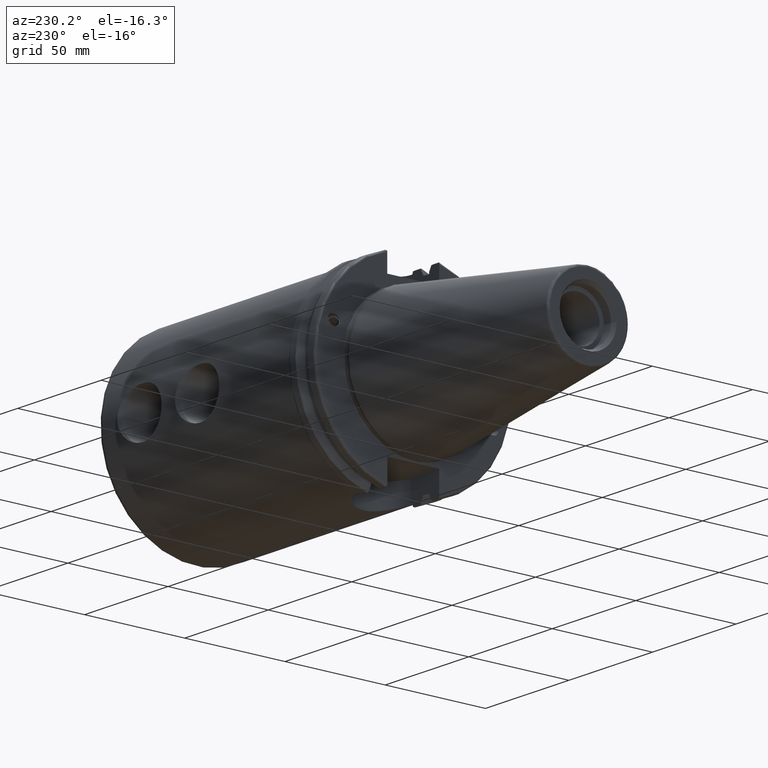
[diagram: clean part render]
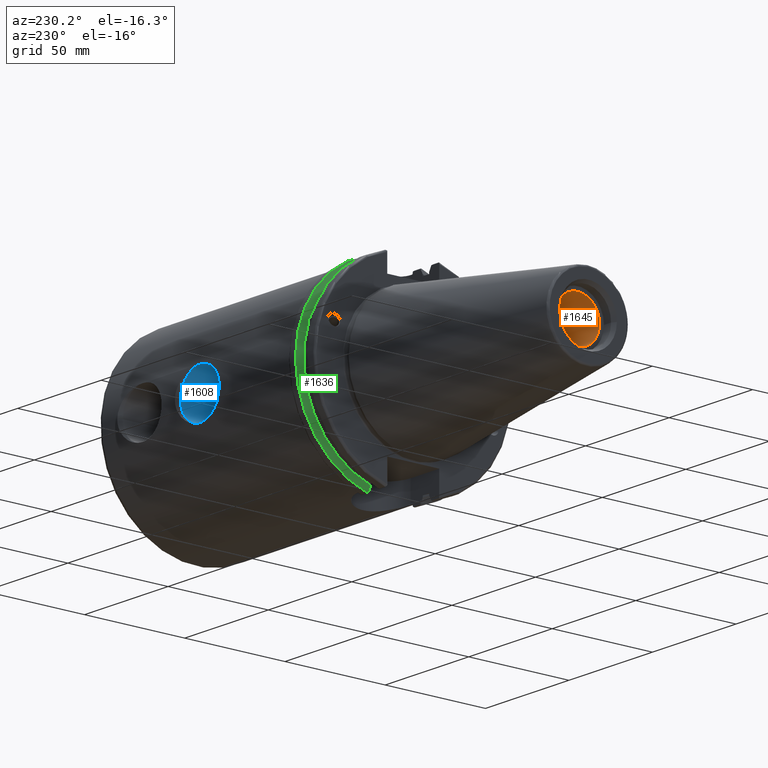
[diagram: same view with three faces highlighted in distinct colors, each labeled with its STEP entity id]
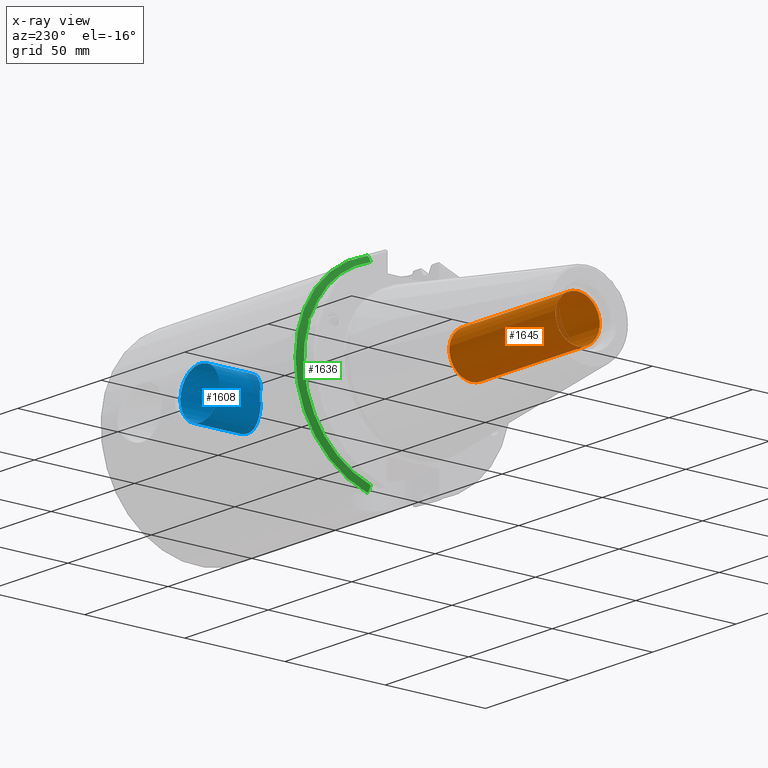
[diagram: x-ray of the same camera — body ghosted, the three highlighted faces saturated]
A machine part, auxiliary view with three faces highlighted in distinct colors.
The next image is the same camera in x-ray (body ghosted, the three faces saturated) — at least one of them is partly hidden behind the body in this view.
Their STEP definitions:

[orange] entity #1645 — the highlighted cylindrical surface (bore or boss wall) has radius 10.9855 mm, axis along (-1, 0, 0).
#157=LINE('',#3279,#248);
#248=VECTOR('',#2168,10.9855);
#308=CYLINDRICAL_SURFACE('',#1820,10.9855);
#366=FACE_OUTER_BOUND('',#472,.T.);
#472=EDGE_LOOP('',(#1346,#1347,#1348,#1349));
#579=CIRCLE('',#1819,10.9855);
#580=CIRCLE('',#1821,10.9855);
#778=VERTEX_POINT('',#3273);
#779=VERTEX_POINT('',#3277);
#987=EDGE_CURVE('',#778,#778,#579,.T.);
#989=EDGE_CURVE('',#779,#779,#580,.T.);
#990=EDGE_CURVE('',#779,#778,#157,.T.);
#1346=ORIENTED_EDGE('',*,*,#989,.F.);
#1347=ORIENTED_EDGE('',*,*,#990,.T.);
#1348=ORIENTED_EDGE('',*,*,#987,.F.);
#1349=ORIENTED_EDGE('',*,*,#990,.F.);
#1645=ADVANCED_FACE('',(#366),#308,.F.);
#1819=AXIS2_PLACEMENT_3D('',#3274,#2161,#2162);
#1820=AXIS2_PLACEMENT_3D('',#3276,#2164,#2165);
#1821=AXIS2_PLACEMENT_3D('',#3278,#2166,#2167);
#2161=DIRECTION('center_axis',(-1.,0.,0.));
#2162=DIRECTION('ref_axis',(0.,0.,1.));
#2164=DIRECTION('center_axis',(-1.,0.,0.));
#2165=DIRECTION('ref_axis',(0.,0.,1.));
#2166=DIRECTION('center_axis',(1.,0.,0.));
#2167=DIRECTION('ref_axis',(0.,0.,1.));
#2168=DIRECTION('',(1.,0.,0.));
#3273=CARTESIAN_POINT('',(-31.6,-1.34533574120333E-15,-10.9855));
#3274=CARTESIAN_POINT('Origin',(-31.6,0.,0.));
#3276=CARTESIAN_POINT('Origin',(-66.6,0.,0.));
#3277=CARTESIAN_POINT('',(-95.25,1.34533574120333E-15,-10.9855));
#3278=CARTESIAN_POINT('Origin',(-95.25,0.,0.));
#3279=CARTESIAN_POINT('',(-66.6,-1.34533574120333E-15,-10.9855));

[blue] entity #1608 — the highlighted cylindrical surface (bore or boss wall) has radius 11.7221 mm, axis along (0, 1, 0).
#118=LINE('',#2668,#209);
#119=LINE('',#2693,#210);
#120=LINE('',#2702,#211);
#209=VECTOR('',#1971,11.7221);
#210=VECTOR('',#1972,10.);
#211=VECTOR('',#1973,10.);
#292=CYLINDRICAL_SURFACE('',#1742,11.7221);
#329=FACE_OUTER_BOUND('',#425,.T.);
#425=EDGE_LOOP('',(#1149,#1150,#1151,#1152,#1153,#1154,#1155,#1156));
#540=CIRCLE('',#1741,11.7221);
#624=B_SPLINE_CURVE_WITH_KNOTS('',3,(#2670,#2671,#2672,#2673,#2674,#2675,
#2676,#2677,#2678,#2679,#2680,#2681,#2682,#2683,#2684,#2685,#2686,#2687,
#2688,#2689,#2690,#2691),.UNSPECIFIED.,.F.,.F.,(4,2,2,2,2,2,2,2,2,2,4),
(2.01979536191022,2.24497394307556,2.69362746322139,3.14313415454042,3.36788750019993,
3.59264084585945,3.81739419151896,4.04214753717848,4.49165422849751,4.94030774864334,
5.38896126878917),.UNSPECIFIED.);
#625=B_SPLINE_CURVE_WITH_KNOTS('',3,(#2695,#2696,#2697,#2698,#2699,#2700),
 .UNSPECIFIED.,.F.,.F.,(4,2,4),(1.5713578067843,1.79478439948926,2.01821099219422),
 .UNSPECIFIED.);
#626=B_SPLINE_CURVE_WITH_KNOTS('',3,(#2703,#2704,#2705,#2706,#2707,#2708,
#2709,#2710,#2711,#2712,#2713,#2714,#2715,#2716,#2717,#2718,#2719,#2720,
#2721,#2722,#2723,#2724,#2725),.UNSPECIFIED.,.F.,.F.,(4,2,2,2,2,3,2,2,2,
2,4),(5.38896126878917,5.837614788935,6.28626830908084,6.73577500039987,
6.96052834605938,7.1852816917189,7.41003503737841,7.63478838303793,8.08429507435696,
8.53294859450279,8.75812717566812),.UNSPECIFIED.);
#698=VERTEX_POINT('',#2663);
#699=VERTEX_POINT('',#2667);
#700=VERTEX_POINT('',#2669);
#701=VERTEX_POINT('',#2692);
#702=VERTEX_POINT('',#2694);
#703=VERTEX_POINT('',#2701);
#876=EDGE_CURVE('',#698,#698,#540,.T.);
#878=EDGE_CURVE('',#698,#699,#118,.T.);
#879=EDGE_CURVE('',#700,#699,#624,.T.);
#880=EDGE_CURVE('',#701,#700,#119,.T.);
#881=EDGE_CURVE('',#702,#701,#625,.T.);
#882=EDGE_CURVE('',#703,#702,#120,.T.);
#883=EDGE_CURVE('',#699,#703,#626,.T.);
#1149=ORIENTED_EDGE('',*,*,#876,.F.);
#1150=ORIENTED_EDGE('',*,*,#878,.T.);
#1151=ORIENTED_EDGE('',*,*,#879,.F.);
#1152=ORIENTED_EDGE('',*,*,#880,.F.);
#1153=ORIENTED_EDGE('',*,*,#881,.F.);
#1154=ORIENTED_EDGE('',*,*,#882,.F.);
#1155=ORIENTED_EDGE('',*,*,#883,.F.);
#1156=ORIENTED_EDGE('',*,*,#878,.F.);
#1608=ADVANCED_FACE('',(#329),#292,.F.);
#1741=AXIS2_PLACEMENT_3D('',#2664,#1966,#1967);
#1742=AXIS2_PLACEMENT_3D('',#2666,#1969,#1970);
#1966=DIRECTION('center_axis',(0.,-1.,0.));
#1967=DIRECTION('ref_axis',(-1.,0.,0.));
#1969=DIRECTION('center_axis',(0.,1.,0.));
#1970=DIRECTION('ref_axis',(-1.,0.,0.));
#1971=DIRECTION('',(0.,-1.,0.));
#1972=DIRECTION('',(0.,-1.,0.));
#1973=DIRECTION('',(0.,1.,0.));
#2663=CARTESIAN_POINT('',(87.2221,46.1251,1.43554322442852E-15));
#2664=CARTESIAN_POINT('Origin',(75.5,46.1251,0.));
#2666=CARTESIAN_POINT('Origin',(75.5,27.625,0.));
#2667=CARTESIAN_POINT('',(87.2221,25.4,-3.01437977979826E-16));
#2668=CARTESIAN_POINT('',(87.2221,27.625,-1.43554322442852E-15));
#2669=CARTESIAN_POINT('',(64.,25.2982681539666,2.27104126118398));
#2670=CARTESIAN_POINT('Ctrl Pts',(64.,25.2982681539666,2.27104126118398));
#2671=CARTESIAN_POINT('Ctrl Pts',(64.1510964535723,25.2295832461497,3.03615691354128));
#2672=CARTESIAN_POINT('Ctrl Pts',(64.3811078539715,25.1258431026857,3.79371023808748));
#2673=CARTESIAN_POINT('Ctrl Pts',(65.2849323960752,24.7347054681876,5.95809888288209));
#2674=CARTESIAN_POINT('Ctrl Pts',(66.1839039679602,24.3641625206674,7.26145676745388));
#2675=CARTESIAN_POINT('Ctrl Pts',(68.2404968102103,23.6541670271324,9.318049609704));
#2676=CARTESIAN_POINT('Ctrl Pts',(69.5431612346825,23.2646449416797,10.2155668802038));
#2677=CARTESIAN_POINT('Ctrl Pts',(71.7026530018647,22.8401860848915,11.1173869403761));
#2678=CARTESIAN_POINT('Ctrl Pts',(72.4564817417293,22.7253289562751,11.3467255072969));
#2679=CARTESIAN_POINT('Ctrl Pts',(73.9805436935457,22.5718036598004,11.6491388330942));
#2680=CARTESIAN_POINT('Ctrl Pts',(74.750822181135,22.5333613025221,11.7221));
#2681=CARTESIAN_POINT('Ctrl Pts',(76.249177818865,22.5333613025221,11.7221));
#2682=CARTESIAN_POINT('Ctrl Pts',(77.0194563064542,22.5718036598004,11.6491388330942));
#2683=CARTESIAN_POINT('Ctrl Pts',(78.5435182582707,22.7253289562751,11.3467255072969));
#2684=CARTESIAN_POINT('Ctrl Pts',(79.2973469981352,22.8401860848915,11.1173869403761));
#2685=CARTESIAN_POINT('Ctrl Pts',(81.4568387653175,23.2646449416797,10.2155668802038));
#2686=CARTESIAN_POINT('Ctrl Pts',(82.7595031897896,23.6541670271324,9.318049609704));
#2687=CARTESIAN_POINT('Ctrl Pts',(84.8160960320398,24.3641625206674,7.26145676745388));
#2688=CARTESIAN_POINT('Ctrl Pts',(85.7150676039248,24.7347054681876,5.95809888288209));
#2689=CARTESIAN_POINT('Ctrl Pts',(86.918643573725,25.255563041573,3.07589548959987));
#2690=CARTESIAN_POINT('Ctrl Pts',(87.2221,25.4,1.49551173381944));
#2691=CARTESIAN_POINT('Ctrl Pts',(87.2221,25.4,2.77555756156289E-15));
#2692=CARTESIAN_POINT('',(64.,25.9006249266306,2.27104126118398));
#2693=CARTESIAN_POINT('',(64.,27.625,2.27104126118398));
#2694=CARTESIAN_POINT('',(64.,25.9006249266306,-2.27104126118398));
#2695=CARTESIAN_POINT('Ctrl Pts',(64.,25.9006249266306,-2.27104126118398));
#2696=CARTESIAN_POINT('Ctrl Pts',(63.8500166807292,25.9672182299389,-1.51156224990678));
#2697=CARTESIAN_POINT('Ctrl Pts',(63.7779,26.,-0.744755309016533));
#2698=CARTESIAN_POINT('Ctrl Pts',(63.7779,26.,0.744755309016533));
#2699=CARTESIAN_POINT('Ctrl Pts',(63.8500166807292,25.9672182299389,1.51156224990678));
#2700=CARTESIAN_POINT('Ctrl Pts',(64.,25.9006249266306,2.27104126118398));
#2701=CARTESIAN_POINT('',(64.,25.2982681539666,-2.27104126118398));
#2702=CARTESIAN_POINT('',(64.,27.625,-2.27104126118398));
#2703=CARTESIAN_POINT('Ctrl Pts',(87.2221,25.4,8.32667268468867E-16));
#2704=CARTESIAN_POINT('Ctrl Pts',(87.2221,25.4,-1.49551173381944));
#2705=CARTESIAN_POINT('Ctrl Pts',(86.918643573725,25.255563041573,-3.07589548959986));
#2706=CARTESIAN_POINT('Ctrl Pts',(85.7150676039248,24.7347054681876,-5.95809888288208));
#2707=CARTESIAN_POINT('Ctrl Pts',(84.8160960320398,24.3641625206674,-7.26145676745387));
#2708=CARTESIAN_POINT('Ctrl Pts',(82.7595031897896,23.6541670271324,-9.318049609704));
#2709=CARTESIAN_POINT('Ctrl Pts',(81.4568387653175,23.2646449416797,-10.2155668802038));
#2710=CARTESIAN_POINT('Ctrl Pts',(79.2973469981353,22.8401860848915,-11.1173869403761));
#2711=CARTESIAN_POINT('Ctrl Pts',(78.5435182582707,22.7253289562751,-11.3467255072969));
#2712=CARTESIAN_POINT('Ctrl Pts',(77.0194563064542,22.5718036598004,-11.6491388330942));
#2713=CARTESIAN_POINT('Ctrl Pts',(76.249177818865,22.5333613025221,-11.7221));
#2714=CARTESIAN_POINT('Ctrl Pts',(75.5,22.5333613025221,-11.7221));
#2715=CARTESIAN_POINT('Ctrl Pts',(74.750822181135,22.5333613025221,-11.7221));
#2716=CARTESIAN_POINT('Ctrl Pts',(73.9805436935458,22.5718036598004,-11.6491388330942));
#2717=CARTESIAN_POINT('Ctrl Pts',(72.4564817417293,22.7253289562751,-11.3467255072969));
#2718=CARTESIAN_POINT('Ctrl Pts',(71.7026530018647,22.8401860848915,-11.1173869403761));
#2719=CARTESIAN_POINT('Ctrl Pts',(69.5431612346825,23.2646449416797,-10.2155668802038));
#2720=CARTESIAN_POINT('Ctrl Pts',(68.2404968102103,23.6541670271324,-9.318049609704));
#2721=CARTESIAN_POINT('Ctrl Pts',(66.1839039679602,24.3641625206674,-7.26145676745388));
#2722=CARTESIAN_POINT('Ctrl Pts',(65.2849323960752,24.7347054681876,-5.95809888288209));
#2723=CARTESIAN_POINT('Ctrl Pts',(64.3811078539715,25.1258431026857,-3.79371023808748));
#2724=CARTESIAN_POINT('Ctrl Pts',(64.1510964535723,25.2295832461497,-3.03615691354128));
#2725=CARTESIAN_POINT('Ctrl Pts',(64.,25.2982681539666,-2.27104126118398));

[green] entity #1636 — the highlighted conical surface has half-angle 60 deg.
#22=(
BOUNDED_CURVE()
B_SPLINE_CURVE(2,(#3226,#3227,#3228),.UNSPECIFIED.,.F.,.F.)
B_SPLINE_CURVE_WITH_KNOTS((3,3),(0.,0.275823910673941),.UNSPECIFIED.)
CURVE()
GEOMETRIC_REPRESENTATION_ITEM()
RATIONAL_B_SPLINE_CURVE((1.,1.00038235575037,1.00012873636973))
REPRESENTATION_ITEM('')
);
#23=(
BOUNDED_CURVE()
B_SPLINE_CURVE(2,(#3230,#3231,#3232),.UNSPECIFIED.,.F.,.F.)
B_SPLINE_CURVE_WITH_KNOTS((3,3),(0.,0.0648240472897797),.UNSPECIFIED.)
CURVE()
GEOMETRIC_REPRESENTATION_ITEM()
RATIONAL_B_SPLINE_CURVE((1.,1.00011477674834,1.00019140645944))
REPRESENTATION_ITEM('')
);
#24=(
BOUNDED_CURVE()
B_SPLINE_CURVE(2,(#3236,#3237,#3238),.UNSPECIFIED.,.F.,.F.)
B_SPLINE_CURVE_WITH_KNOTS((3,3),(0.325260944932476,0.390084992222204),
 .UNSPECIFIED.)
CURVE()
GEOMETRIC_REPRESENTATION_ITEM()
RATIONAL_B_SPLINE_CURVE((1.00019140645951,1.00011477674838,1.))
REPRESENTATION_ITEM('')
);
#25=(
BOUNDED_CURVE()
B_SPLINE_CURVE(2,(#3240,#3241,#3242),.UNSPECIFIED.,.F.,.F.)
B_SPLINE_CURVE_WITH_KNOTS((3,3),(0.0558332664477548,0.331657177124506),
 .UNSPECIFIED.)
CURVE()
GEOMETRIC_REPRESENTATION_ITEM()
RATIONAL_B_SPLINE_CURVE((1.00012873636922,1.00038235574886,1.))
REPRESENTATION_ITEM('')
);
#76=CONICAL_SURFACE('',#1800,47.8172386482472,1.0471975511966);
#357=FACE_OUTER_BOUND('',#460,.T.);
#460=EDGE_LOOP('',(#1304,#1305,#1306,#1307,#1308,#1309,#1310,#1311,#1312));
#570=CIRCLE('',#1801,46.4219772964944);
#571=CIRCLE('',#1802,49.2125);
#572=CIRCLE('',#1803,46.4219772964944);
#642=B_SPLINE_CURVE_WITH_KNOTS('',3,(#3151,#3152,#3153,#3154,#3155,#3156,
#3157,#3158),.UNSPECIFIED.,.F.,.F.,(4,2,2,4),(0.426712868358723,0.441644498666905,
0.480313313223129,0.518982127779353),.UNSPECIFIED.);
#646=B_SPLINE_CURVE_WITH_KNOTS('',3,(#3213,#3214,#3215,#3216,#3217,#3218,
#3219,#3220),.UNSPECIFIED.,.F.,.F.,(4,2,2,4),(0.518982127779353,0.557650942335576,
0.5963197568918,0.611251387199986),.UNSPECIFIED.);
#755=VERTEX_POINT('',#3148);
#756=VERTEX_POINT('',#3150);
#763=VERTEX_POINT('',#3211);
#764=VERTEX_POINT('',#3223);
#765=VERTEX_POINT('',#3225);
#766=VERTEX_POINT('',#3229);
#767=VERTEX_POINT('',#3233);
#768=VERTEX_POINT('',#3235);
#769=VERTEX_POINT('',#3239);
#958=EDGE_CURVE('',#756,#755,#642,.T.);
#966=EDGE_CURVE('',#755,#763,#646,.T.);
#967=EDGE_CURVE('',#763,#764,#570,.T.);
#968=EDGE_CURVE('',#764,#765,#22,.T.);
#969=EDGE_CURVE('',#766,#765,#23,.T.);
#970=EDGE_CURVE('',#767,#766,#571,.T.);
#971=EDGE_CURVE('',#768,#767,#24,.T.);
#972=EDGE_CURVE('',#768,#769,#25,.T.);
#973=EDGE_CURVE('',#769,#756,#572,.T.);
#1304=ORIENTED_EDGE('',*,*,#958,.T.);
#1305=ORIENTED_EDGE('',*,*,#966,.T.);
#1306=ORIENTED_EDGE('',*,*,#967,.T.);
#1307=ORIENTED_EDGE('',*,*,#968,.T.);
#1308=ORIENTED_EDGE('',*,*,#969,.F.);
#1309=ORIENTED_EDGE('',*,*,#970,.F.);
#1310=ORIENTED_EDGE('',*,*,#971,.F.);
#1311=ORIENTED_EDGE('',*,*,#972,.T.);
#1312=ORIENTED_EDGE('',*,*,#973,.T.);
#1636=ADVANCED_FACE('',(#357),#76,.T.);
#1800=AXIS2_PLACEMENT_3D('',#3222,#2117,#2118);
#1801=AXIS2_PLACEMENT_3D('',#3224,#2119,#2120);
#1802=AXIS2_PLACEMENT_3D('',#3234,#2121,#2122);
#1803=AXIS2_PLACEMENT_3D('',#3243,#2123,#2124);
#2117=DIRECTION('center_axis',(1.,0.,0.));
#2118=DIRECTION('ref_axis',(0.,1.,0.));
#2119=DIRECTION('center_axis',(1.,0.,0.));
#2120=DIRECTION('ref_axis',(0.,0.,-1.));
#2121=DIRECTION('center_axis',(1.,0.,0.));
#2122=DIRECTION('ref_axis',(0.,0.,-1.));
#2123=DIRECTION('center_axis',(1.,0.,0.));
#2124=DIRECTION('ref_axis',(0.,0.,-1.));
#3148=CARTESIAN_POINT('',(13.227,43.923494649906,15.9868446375166));
#3150=CARTESIAN_POINT('',(13.042,43.9096390749305,15.0646464421033));
#3151=CARTESIAN_POINT('Ctrl Pts',(13.042,43.9096390749305,15.0646464421033));
#3152=CARTESIAN_POINT('Ctrl Pts',(13.0589815609661,43.9250360001461,15.1104047527575));
#3153=CARTESIAN_POINT('Ctrl Pts',(13.0750132459668,43.9385582852181,15.1564111356409));
#3154=CARTESIAN_POINT('Ctrl Pts',(13.1287132615496,43.9797830409459,15.3217566390709));
#3155=CARTESIAN_POINT('Ctrl Pts',(13.1648838933644,43.9989016655819,15.4570249042868));
#3156=CARTESIAN_POINT('Ctrl Pts',(13.2141913174802,43.9931221605126,15.7289849146254));
#3157=CARTESIAN_POINT('Ctrl Pts',(13.227,43.9675796948952,15.8657219718732));
#3158=CARTESIAN_POINT('Ctrl Pts',(13.227,43.923494649906,15.9868446375166));
#3211=CARTESIAN_POINT('',(13.042,43.3201030900029,16.6843832486479));
#3213=CARTESIAN_POINT('Ctrl Pts',(13.227,43.923494649906,15.9868446375166));
#3214=CARTESIAN_POINT('Ctrl Pts',(13.227,43.8794096049169,16.10796730316));
#3215=CARTESIAN_POINT('Ctrl Pts',(13.2141913174802,43.8110833825828,16.2291323464527));
#3216=CARTESIAN_POINT('Ctrl Pts',(13.1648838933644,43.6406982153492,16.441180795372));
#3217=CARTESIAN_POINT('Ctrl Pts',(13.1287132615496,43.5391037343221,16.5325130832406));
#3218=CARTESIAN_POINT('Ctrl Pts',(13.0750132459668,43.4012416983557,16.6326763251437));
#3219=CARTESIAN_POINT('Ctrl Pts',(13.0589815609661,43.3613106941341,16.6592273018006));
#3220=CARTESIAN_POINT('Ctrl Pts',(13.042,43.3201030900029,16.6843832486479));
#3222=CARTESIAN_POINT('Origin',(13.8475545170244,0.,0.));
#3223=CARTESIAN_POINT('',(13.042,12.95,44.5791147973604));
#3224=CARTESIAN_POINT('Origin',(13.042,0.,0.));
#3225=CARTESIAN_POINT('',(14.3747103943757,12.95,46.9780755322917));
#3226=CARTESIAN_POINT('Ctrl Pts',(13.042,12.95,44.5791147973604));
#3227=CARTESIAN_POINT('Ctrl Pts',(13.6908955094594,12.95,45.7494966802471));
#3228=CARTESIAN_POINT('Ctrl Pts',(14.3747103943757,12.95,46.9780755322917));
#3229=CARTESIAN_POINT('',(14.6531090340487,13.4317035994433,47.3440544806494));
#3230=CARTESIAN_POINT('Ctrl Pts',(14.6531090340487,13.4317035994433,47.3440544806494));
#3231=CARTESIAN_POINT('Ctrl Pts',(14.5128310333618,13.1896660169966,47.1601640966265));
#3232=CARTESIAN_POINT('Ctrl Pts',(14.3747103943757,12.95,46.9780755322917));
#3233=CARTESIAN_POINT('',(14.6531090340487,13.4317035994433,-47.3440544806494));
#3234=CARTESIAN_POINT('Origin',(14.6531090340487,0.,0.));
#3235=CARTESIAN_POINT('',(14.3747103943758,12.95,-46.9780755322918));
#3236=CARTESIAN_POINT('Ctrl Pts',(14.3747103943758,12.95,-46.9780755322918));
#3237=CARTESIAN_POINT('Ctrl Pts',(14.5128310333618,13.1896660169966,-47.1601640966264));
#3238=CARTESIAN_POINT('Ctrl Pts',(14.6531090340487,13.4317035994433,-47.3440544806494));
#3239=CARTESIAN_POINT('',(13.042,12.95,-44.5791147973604));
#3240=CARTESIAN_POINT('Ctrl Pts',(14.3747103943758,12.95,-46.9780755322918));
#3241=CARTESIAN_POINT('Ctrl Pts',(13.6908955094237,12.95,-45.7494966801829));
#3242=CARTESIAN_POINT('Ctrl Pts',(13.042,12.95,-44.5791147973604));
#3243=CARTESIAN_POINT('Origin',(13.042,0.,0.));